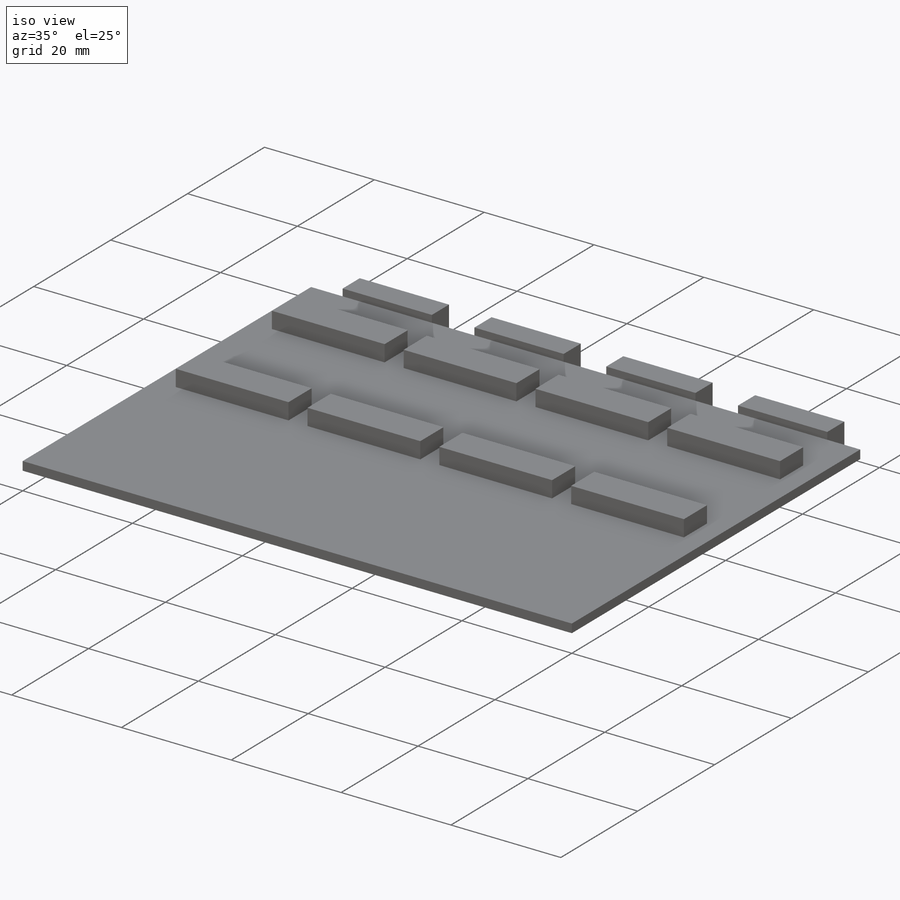
[diagram: iso view]
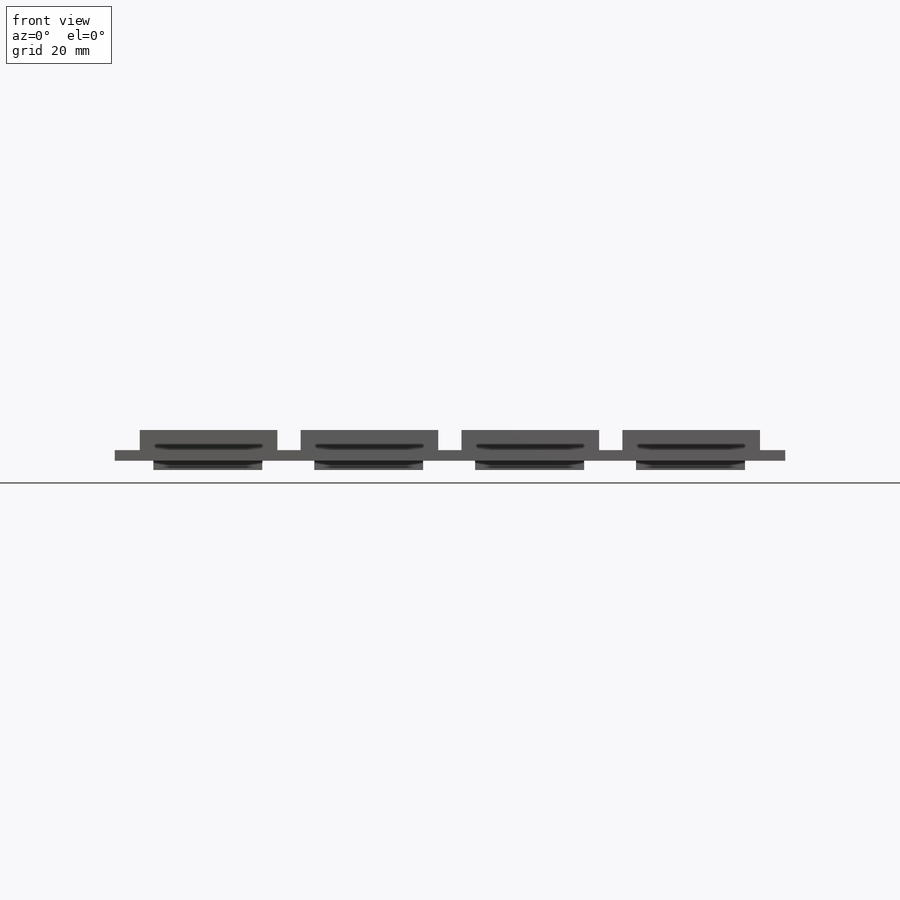
[diagram: front view]
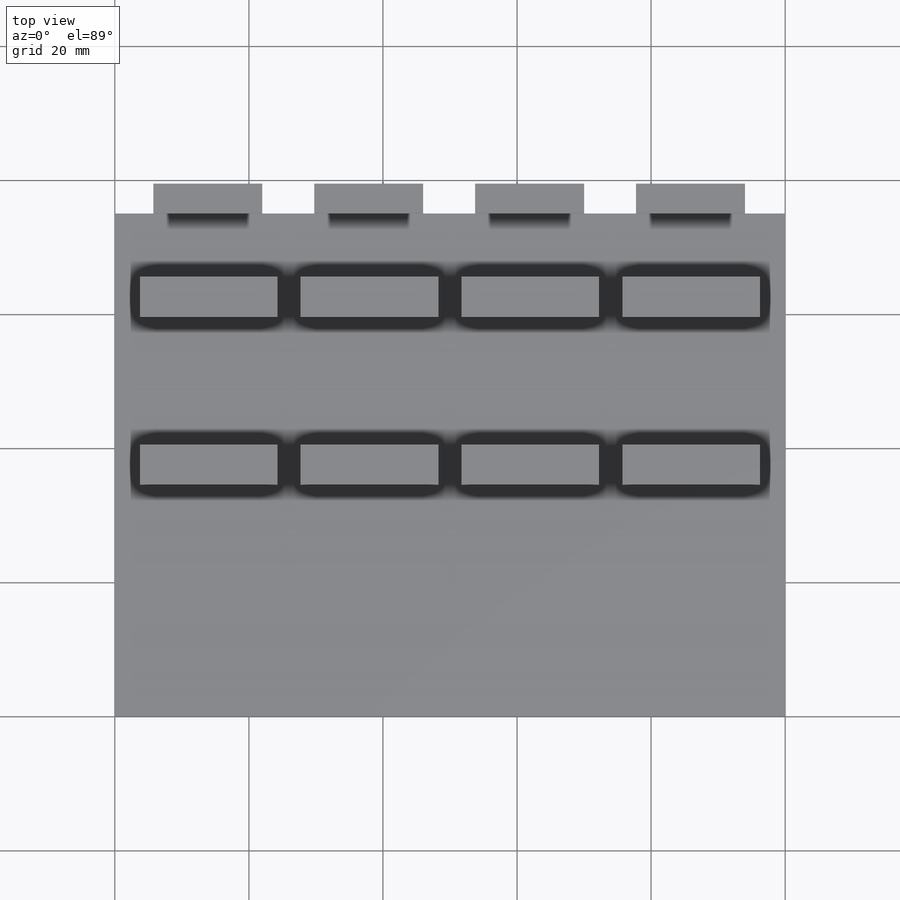
[diagram: top view]
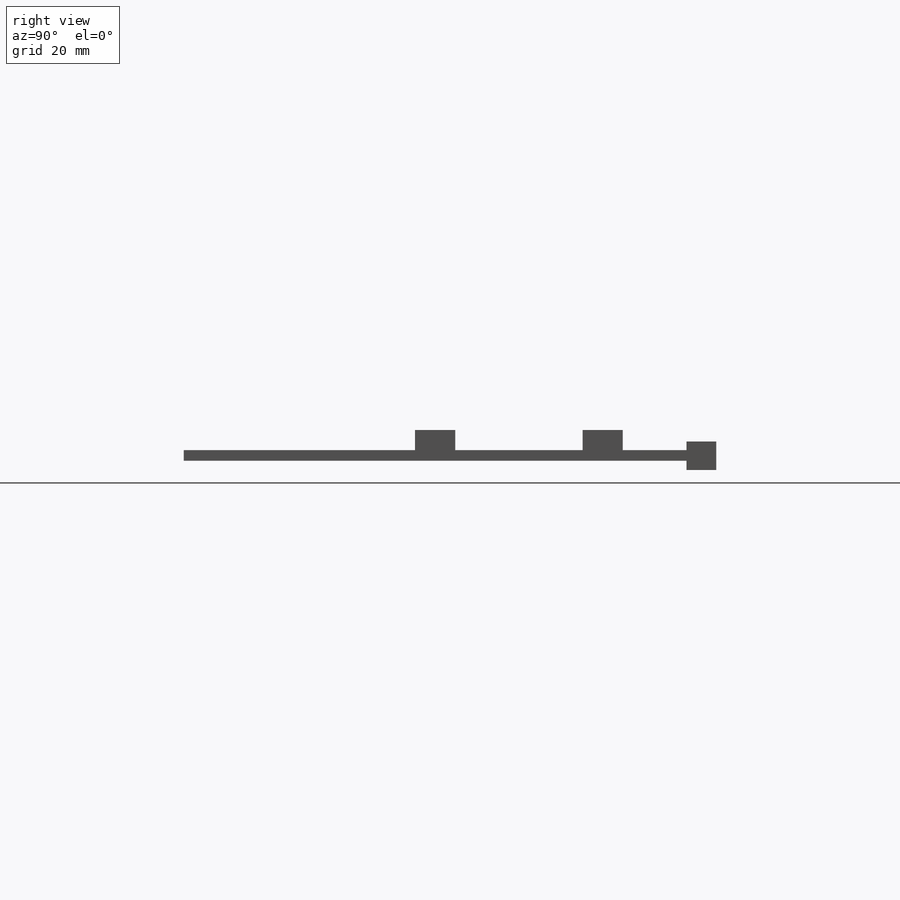
[diagram: right view]
SOLIDWORKS PART (.sldprt)
format: sldprt  version: not decoded by parser v0  size: 229,888 bytes
history: native  units: mm
features: sketch x3, extrude x3, pattern_linear x2, material x1 (+11 scaffold rows collapsed)
feature tree (20):
  scaffold x11  (default folders/planes/origin — collapsed)
  material  "Material <not specified>"
  sketch  "Sketch1"
  extrude  "Boss-Extrude1"  Depth=1.5875mm
  sketch  "Sketch2"
  extrude  "Boss-Extrude2"  Depth=4.5875mm
  pattern_linear  "LPattern1"  Count1=4 Count2=2 Spacing1=24mm Spacing2=25mm
  sketch  "Sketch3"
  extrude  "Boss-Extrude3"  Depth=4.45mm
  pattern_linear  "LPattern2"  Count1=4 Count2=1 Spacing1=24mm Spacing2=10mm
decode coverage: 5 of 8 modeling features carry decoded parameters
note: suppression state not decoded; provenance and decode notes live in map.json
